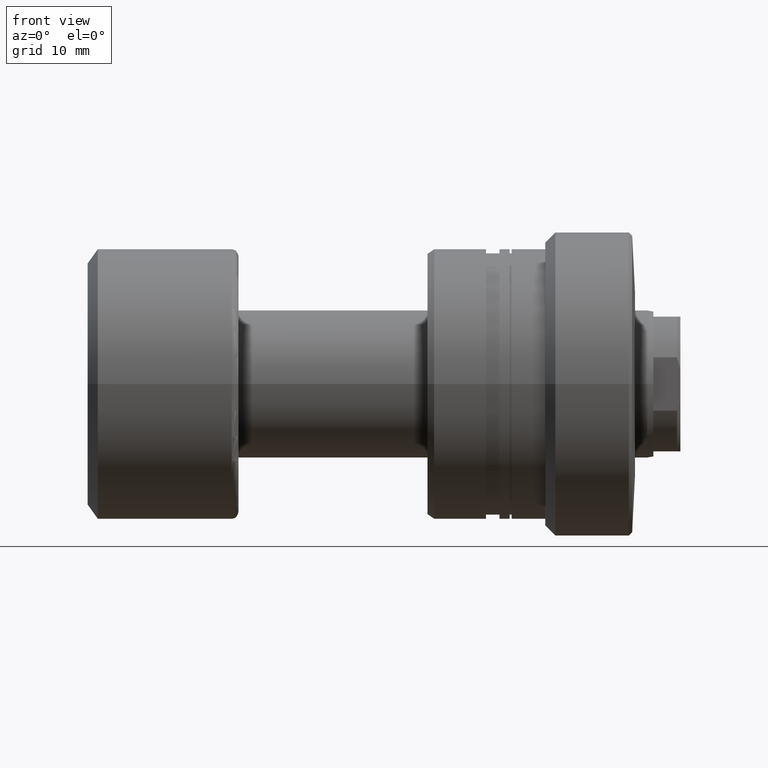
[diagram: clean part render]
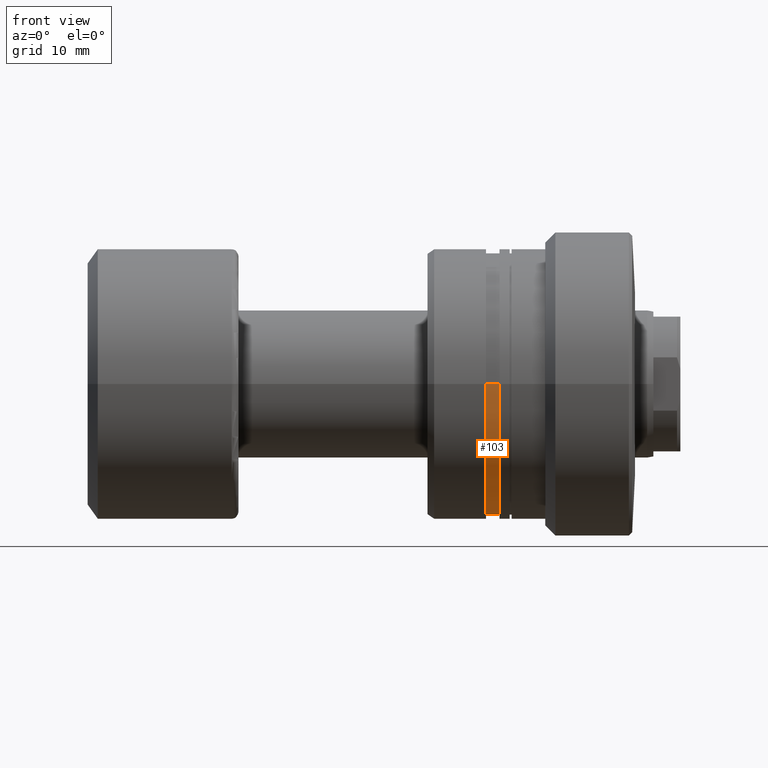
[diagram: same view with one face highlighted and labeled with its STEP entity id]
A machine part, front view. The second image highlights one B-rep face of the part: STEP entity #103.
In plain terms, the highlighted cylindrical surface (partial cylindrical patch) has radius 19.5 mm, axis along (1, 0, 0).
Its self-contained STEP definition (entity closure, byte-faithful):
#73 = DIRECTION ( 'NONE',  ( 1.000000000000000000, 3.039592211588219332E-15, -0.000000000000000000 ) ) ;
#103 = ADVANCED_FACE ( 'NONE', ( #2036 ), #1317, .T. ) ;
#182 = VERTEX_POINT ( 'NONE', #1959 ) ;
#184 = AXIS2_PLACEMENT_3D ( 'NONE', #1112, #2264, #1087 ) ;
#186 = AXIS2_PLACEMENT_3D ( 'NONE', #722, #1474, #1635 ) ;
#264 = VERTEX_POINT ( 'NONE', #1624 ) ;
#418 = CARTESIAN_POINT ( 'NONE',  ( -30.28002276692726369, -19.50000000000002132, 2.388061258337341305E-15 ) ) ;
#486 = LINE ( 'NONE', #1250, #1597 ) ;
#598 = DIRECTION ( 'NONE',  ( -3.024646060677506357E-15, 1.000000000000000000, 0.000000000000000000 ) ) ;
#634 = EDGE_CURVE ( 'NONE', #1389, #264, #2284, .T. ) ;
#722 = CARTESIAN_POINT ( 'NONE',  ( -20.80000000000006111, 2.881540336803110710E-14, 0.000000000000000000 ) ) ;
#747 = VERTEX_POINT ( 'NONE', #1224 ) ;
#770 = AXIS2_PLACEMENT_3D ( 'NONE', #2055, #1945, #598 ) ;
#954 = EDGE_CURVE ( 'NONE', #1389, #747, #1135, .T. ) ;
#984 = ORIENTED_EDGE ( 'NONE', *, *, #1392, .F. ) ;
#1064 = DIRECTION ( 'NONE',  ( 1.000000000000000000, 3.039592211588219332E-15, -0.000000000000000000 ) ) ;
#1087 = DIRECTION ( 'NONE',  ( -3.024646060677507146E-15, 1.000000000000000000, 0.000000000000000000 ) ) ;
#1112 = CARTESIAN_POINT ( 'NONE',  ( -22.80878161770243651, 2.270952640808138014E-14, 0.000000000000000000 ) ) ;
#1135 = CIRCLE ( 'NONE', #184, 19.50000000000001776 ) ;
#1224 = CARTESIAN_POINT ( 'NONE',  ( -22.80878161770249690, 19.50000000000004263, 0.000000000000000000 ) ) ;
#1250 = CARTESIAN_POINT ( 'NONE',  ( -30.28002276692738448, 19.50000000000002132, 0.000000000000000000 ) ) ;
#1317 = CYLINDRICAL_SURFACE ( 'NONE', #770, 19.50000000000002132 ) ;
#1352 = ORIENTED_EDGE ( 'NONE', *, *, #954, .T. ) ;
#1389 = VERTEX_POINT ( 'NONE', #2421 ) ;
#1392 = EDGE_CURVE ( 'NONE', #264, #182, #1532, .T. ) ;
#1452 = ORIENTED_EDGE ( 'NONE', *, *, #634, .F. ) ;
#1474 = DIRECTION ( 'NONE',  ( 1.000000000000000000, 3.039592211588219332E-15, -0.000000000000000000 ) ) ;
#1532 = CIRCLE ( 'NONE', #186, 19.50000000000002487 ) ;
#1597 = VECTOR ( 'NONE', #1064, 1000.000000000000000 ) ;
#1624 = CARTESIAN_POINT ( 'NONE',  ( -20.80000000000000426, -19.49999999999999645, 2.388061258337341305E-15 ) ) ;
#1635 = DIRECTION ( 'NONE',  ( -3.024646060677505962E-15, 1.000000000000000000, 0.000000000000000000 ) ) ;
#1662 = EDGE_LOOP ( 'NONE', ( #1452, #1352, #2364, #984 ) ) ;
#1945 = DIRECTION ( 'NONE',  ( 1.000000000000000000, 3.039592211588219332E-15, -0.000000000000000000 ) ) ;
#1959 = CARTESIAN_POINT ( 'NONE',  ( -20.80000000000012150, 19.50000000000005329, 0.000000000000000000 ) ) ;
#1991 = VECTOR ( 'NONE', #73, 1000.000000000000000 ) ;
#2036 = FACE_OUTER_BOUND ( 'NONE', #1662, .T. ) ;
#2055 = CARTESIAN_POINT ( 'NONE',  ( -30.28002276692732408, 0.000000000000000000, 0.000000000000000000 ) ) ;
#2264 = DIRECTION ( 'NONE',  ( 1.000000000000000000, 3.039592211588219332E-15, -0.000000000000000000 ) ) ;
#2284 = LINE ( 'NONE', #418, #1991 ) ;
#2354 = EDGE_CURVE ( 'NONE', #747, #182, #486, .T. ) ;
#2364 = ORIENTED_EDGE ( 'NONE', *, *, #2354, .T. ) ;
#2421 = CARTESIAN_POINT ( 'NONE',  ( -22.80878161770237966, -19.49999999999999289, 2.388061258337341305E-15 ) ) ;